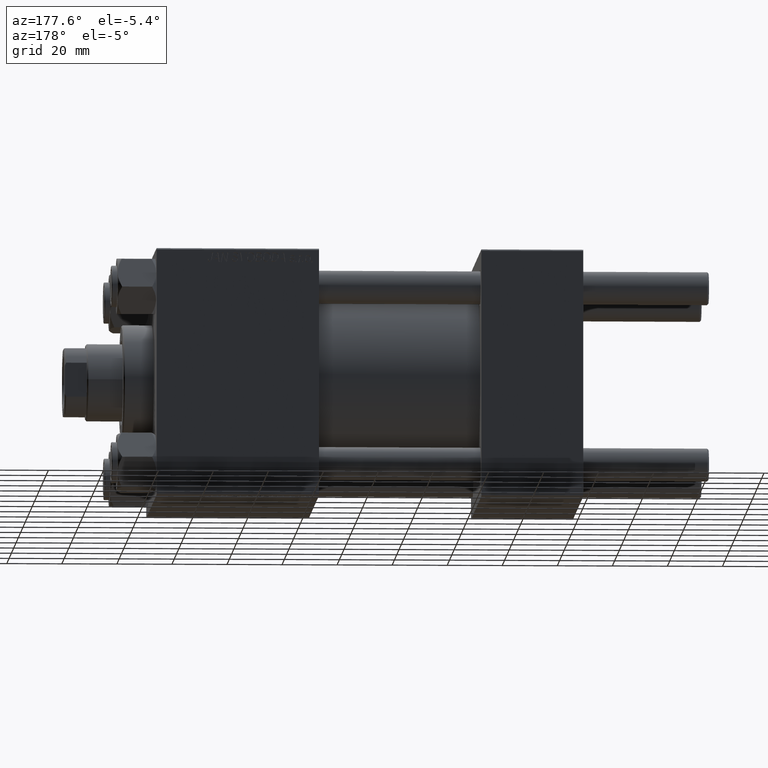
[diagram: clean part render]
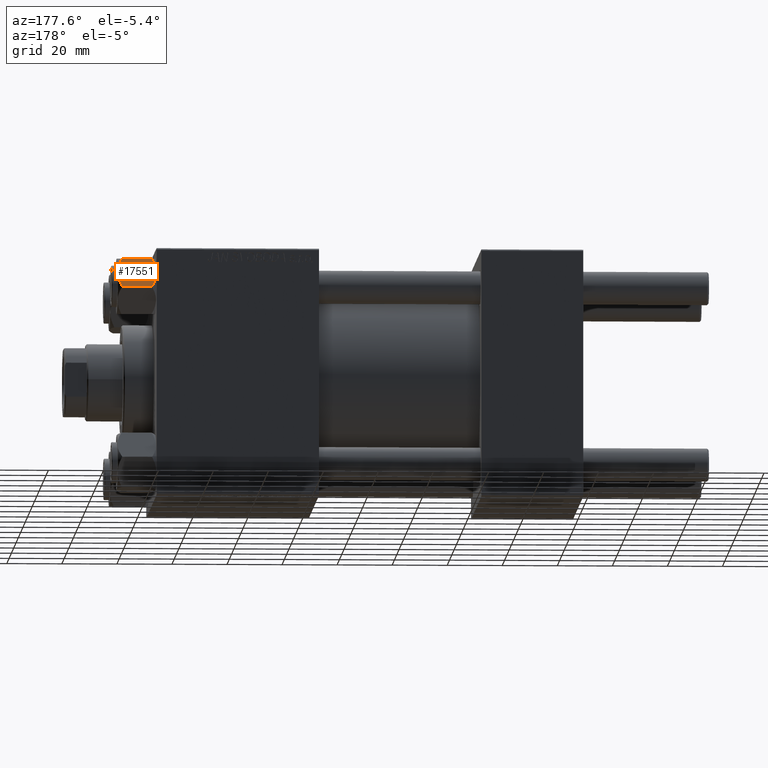
[diagram: same view with one face highlighted and labeled with its STEP entity id]
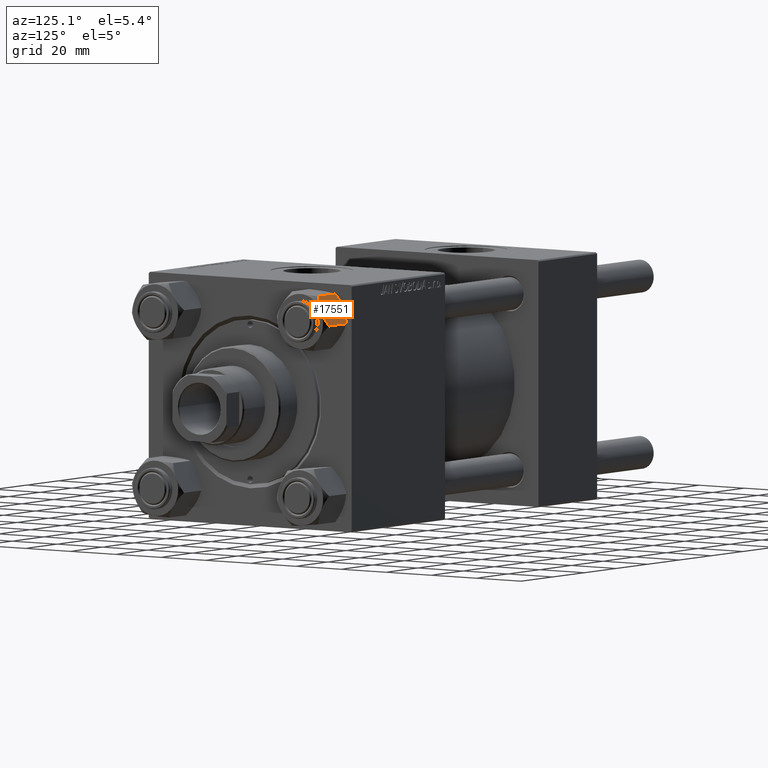
[diagram: same view with one face highlighted and labeled with its STEP entity id]
A machine part, auxiliary view. The second image highlights one B-rep face of the part: STEP entity #17551.
A second angle (auxiliary view) of the same face is appended — the face is thin or edge-on in the first view.
In plain terms, the highlighted planar face has unit normal (-0, -0.9104, -0.4137).
Its self-contained STEP definition (entity closure, byte-faithful):
#177 = FACE_OUTER_BOUND ( 'NONE', #39867, .T. ) ;
#608 = CARTESIAN_POINT ( 'NONE',  ( 0.2543996698847451055, 10.06321519197518199, -13.99999999999999289 ) ) ;
#681 = ORIENTED_EDGE ( 'NONE', *, *, #15908, .F. ) ;
#1044 = VERTEX_POINT ( 'NONE', #25165 ) ;
#1378 = CARTESIAN_POINT ( 'NONE',  ( -0.5112014849988953946, 10.06321519197518199, -0.009803979428924322267 ) ) ;
#2033 = CARTESIAN_POINT ( 'NONE',  ( 0.5112014849988854026, 10.06321519197518022, -13.99019602057108003 ) ) ;
#2513 = CARTESIAN_POINT ( 'NONE',  ( -5.810000000000004050, 10.06321519197517667, -12.44321519197517745 ) ) ;
#2941 = VECTOR ( 'NONE', #4185, 1000.000000000000000 ) ;
#3617 = EDGE_CURVE ( 'NONE', #40204, #44343, #28467, .T. ) ;
#4124 = EDGE_CURVE ( 'NONE', #44343, #13477, #43721, .T. ) ;
#4185 = DIRECTION ( 'NONE',  ( -0.000000000000000000, -0.000000000000000000, 1.000000000000000000 ) ) ;
#4205 = DIRECTION ( 'NONE',  ( 5.971509383741162381E-16, -1.000000000000000000, 0.000000000000000000 ) ) ;
#5157 = CARTESIAN_POINT ( 'NONE',  ( -0.2543996698847555971, 10.06321519197517844, -8.687169907040107433E-15 ) ) ;
#5295 = CARTESIAN_POINT ( 'NONE',  ( -3.474497094393259378, 10.06321519197517844, -13.42730390989571809 ) ) ;
#5898 = EDGE_CURVE ( 'NONE', #39558, #1044, #49404, .T. ) ;
#6064 = AXIS2_PLACEMENT_3D ( 'NONE', #38316, #4205, #15318 ) ;
#7236 = PLANE ( 'NONE',  #6064 ) ;
#7896 = CARTESIAN_POINT ( 'NONE',  ( 3.474497094393246055, 10.06321519197518199, -0.5726960901042849050 ) ) ;
#8835 = EDGE_CURVE ( 'NONE', #14575, #40204, #10591, .T. ) ;
#9357 = DIRECTION ( 'NONE',  ( -0.000000000000000000, -0.000000000000000000, 1.000000000000000000 ) ) ;
#10591 = B_SPLINE_CURVE_WITH_KNOTS ( 'NONE', 3,
 ( #2513, #33322, #48734, #14106, #5295, #45938, #19134, #11069 ),
 .UNSPECIFIED., .F., .F.,
 ( 4, 2, 2, 4 ),
 ( 0.01467889604968878811, 0.01619420351931634763, 0.01770951098894390716, 0.02074012592819902273 ),
 .UNSPECIFIED. ) ;
#11069 = CARTESIAN_POINT ( 'NONE',  ( -6.009258394948640858E-15, 10.06321519197518022, -14.00000000000000000 ) ) ;
#13134 = CARTESIAN_POINT ( 'NONE',  ( 5.809999999999994280, 10.06321519197518377, -12.44321519197517389 ) ) ;
#13230 = CARTESIAN_POINT ( 'NONE',  ( -1.018274738099091303, 10.06321519197518022, -0.04822742080071992093 ) ) ;
#13477 = VERTEX_POINT ( 'NONE', #39205 ) ;
#13625 = CARTESIAN_POINT ( 'NONE',  ( 1.772424303831120707, 10.06321519197518022, -13.86611290782775541 ) ) ;
#14106 = CARTESIAN_POINT ( 'NONE',  ( -3.958929922320423067, 10.06321519197517489, -13.25786014976459626 ) ) ;
#14575 = VERTEX_POINT ( 'NONE', #31075 ) ;
#14763 = ORIENTED_EDGE ( 'NONE', *, *, #8835, .F. ) ;
#15318 = DIRECTION ( 'NONE',  ( 1.000000000000000000, 5.971509383741162381E-16, 0.000000000000000000 ) ) ;
#15908 = EDGE_CURVE ( 'NONE', #13477, #39558, #42698, .T. ) ;
#17551 = ADVANCED_FACE ( 'NONE', ( #177 ), #7236, .F. ) ;
#19134 = CARTESIAN_POINT ( 'NONE',  ( -1.020132157807628781, 10.06321519197518022, -13.99999999999999467 ) ) ;
#20552 = CARTESIAN_POINT ( 'NONE',  ( -5.810000000000003162, 10.06321519197517667, -1.556784808024824107 ) ) ;
#21056 = CARTESIAN_POINT ( 'NONE',  ( -6.009258394948640858E-15, 10.06321519197518022, 0.000000000000000000 ) ) ;
#21206 = CARTESIAN_POINT ( 'NONE',  ( -6.009258394948640858E-15, 10.06321519197518022, -14.00000000000000000 ) ) ;
#23518 = VECTOR ( 'NONE', #9357, 1000.000000000000000 ) ;
#23556 = CARTESIAN_POINT ( 'NONE',  ( 3.958929922320414185, 10.06321519197518377, -0.7421398502354088489 ) ) ;
#24756 = CARTESIAN_POINT ( 'NONE',  ( 4.908816193182378385, 10.06321519197518199, -12.89380709538398406 ) ) ;
#24849 = CARTESIAN_POINT ( 'NONE',  ( -3.960942496020607884, 10.06321519197517844, -0.7115728323610508443 ) ) ;
#25165 = CARTESIAN_POINT ( 'NONE',  ( -5.810000000000003162, 10.06321519197517667, -1.556784808024824107 ) ) ;
#25456 = CARTESIAN_POINT ( 'NONE',  ( 5.809999999999994280, 10.06321519197518377, -12.44321519197517389 ) ) ;
#27109 = CARTESIAN_POINT ( 'NONE',  ( 1.020132157807618345, 10.06321519197518022, -8.626183534837794653E-15 ) ) ;
#27495 = CARTESIAN_POINT ( 'NONE',  ( -6.009258394948640858E-15, 10.06321519197518022, 0.000000000000000000 ) ) ;
#27611 = CARTESIAN_POINT ( 'NONE',  ( 3.960942496020599002, 10.06321519197518199, -13.28842716763894671 ) ) ;
#27844 = CARTESIAN_POINT ( 'NONE',  ( 5.359707691559670195, 10.06321519197518199, -1.331638653804663619 ) ) ;
#28072 = EDGE_CURVE ( 'NONE', #14575, #1044, #38777, .T. ) ;
#28135 = CARTESIAN_POINT ( 'NONE',  ( -4.908816193182384602, 10.06321519197518022, -1.106192904616017048 ) ) ;
#28467 = B_SPLINE_CURVE_WITH_KNOTS ( 'NONE', 3,
 ( #21206, #608, #2033, #48495, #13625, #31407, #27611, #24756, #13134 ),
 .UNSPECIFIED., .F., .F.,
 ( 4, 2, 1, 2, 4 ),
 ( 0.02074012592819902273, 0.02149589804477578664, 0.02225167016135255055, 0.02376321439450608183, 0.02678630286081314094 ),
 .UNSPECIFIED. ) ;
#30610 = ORIENTED_EDGE ( 'NONE', *, *, #3617, .F. ) ;
#31075 = CARTESIAN_POINT ( 'NONE',  ( -5.810000000000004050, 10.06321519197517667, -12.44321519197517745 ) ) ;
#31407 = CARTESIAN_POINT ( 'NONE',  ( 2.508586450168036386, 10.06321519197518199, -13.70242473679676287 ) ) ;
#32182 = CARTESIAN_POINT ( 'NONE',  ( -2.508586450168046156, 10.06321519197518022, -0.2975752632032391820 ) ) ;
#33322 = CARTESIAN_POINT ( 'NONE',  ( -5.359707691559678189, 10.06321519197518022, -12.66836134619534171 ) ) ;
#35888 = ORIENTED_EDGE ( 'NONE', *, *, #5898, .F. ) ;
#36721 = CARTESIAN_POINT ( 'NONE',  ( -1.772424303831134917, 10.06321519197518022, -0.1338870921722490892 ) ) ;
#38316 = CARTESIAN_POINT ( 'NONE',  ( -5.810000000000003162, 10.06321519197517667, -14.00000000000000000 ) ) ;
#38777 = LINE ( 'NONE', #39026, #2941 ) ;
#38968 = CARTESIAN_POINT ( 'NONE',  ( -6.009258394948640858E-15, 10.06321519197518022, 0.000000000000000000 ) ) ;
#39026 = CARTESIAN_POINT ( 'NONE',  ( -5.810000000000003162, 10.06321519197517667, -14.00000000000000000 ) ) ;
#39205 = CARTESIAN_POINT ( 'NONE',  ( 5.809999999999995168, 10.06321519197518377, -1.556784808024826106 ) ) ;
#39458 = CARTESIAN_POINT ( 'NONE',  ( 5.809999999999995168, 10.06321519197518377, -1.556784808024826106 ) ) ;
#39558 = VERTEX_POINT ( 'NONE', #27495 ) ;
#39867 = EDGE_LOOP ( 'NONE', ( #14763, #43591, #35888, #681, #46885, #30610 ) ) ;
#40204 = VERTEX_POINT ( 'NONE', #44254 ) ;
#42698 = B_SPLINE_CURVE_WITH_KNOTS ( 'NONE', 3,
 ( #39458, #27844, #43012, #23556, #7896, #43264, #27109, #38968 ),
 .UNSPECIFIED., .F., .F.,
 ( 4, 2, 2, 4 ),
 ( 0.01467889604968878464, 0.01619420351931634416, 0.01770951098894390369, 0.02074012592819901926 ),
 .UNSPECIFIED. ) ;
#43012 = CARTESIAN_POINT ( 'NONE',  ( 4.900668367960789418, 10.06321519197518732, -1.121556683709783231 ) ) ;
#43264 = CARTESIAN_POINT ( 'NONE',  ( 2.013954290287958138, 10.06321519197518377, -0.1570111679760076706 ) ) ;
#43591 = ORIENTED_EDGE ( 'NONE', *, *, #28072, .T. ) ;
#43721 = LINE ( 'NONE', #44218, #23518 ) ;
#44218 = CARTESIAN_POINT ( 'NONE',  ( 5.809999999999995168, 10.06321519197518377, -14.00000000000000000 ) ) ;
#44254 = CARTESIAN_POINT ( 'NONE',  ( -6.009258394948640858E-15, 10.06321519197518022, -14.00000000000000000 ) ) ;
#44343 = VERTEX_POINT ( 'NONE', #25456 ) ;
#45938 = CARTESIAN_POINT ( 'NONE',  ( -2.013954290287971460, 10.06321519197518022, -13.84298883202399466 ) ) ;
#46885 = ORIENTED_EDGE ( 'NONE', *, *, #4124, .F. ) ;
#48495 = CARTESIAN_POINT ( 'NONE',  ( 1.018274738099081977, 10.06321519197517844, -13.95177257919928415 ) ) ;
#48734 = CARTESIAN_POINT ( 'NONE',  ( -4.900668367960797411, 10.06321519197517667, -12.87844331629021966 ) ) ;
#49404 = B_SPLINE_CURVE_WITH_KNOTS ( 'NONE', 3,
 ( #21056, #5157, #1378, #13230, #36721, #32182, #24849, #28135, #20552 ),
 .UNSPECIFIED., .F., .F.,
 ( 4, 2, 1, 2, 4 ),
 ( 0.02074012592819901926, 0.02149589804477578317, 0.02225167016135255055, 0.02376321439450607836, 0.02678630286081313747 ),
 .UNSPECIFIED. ) ;